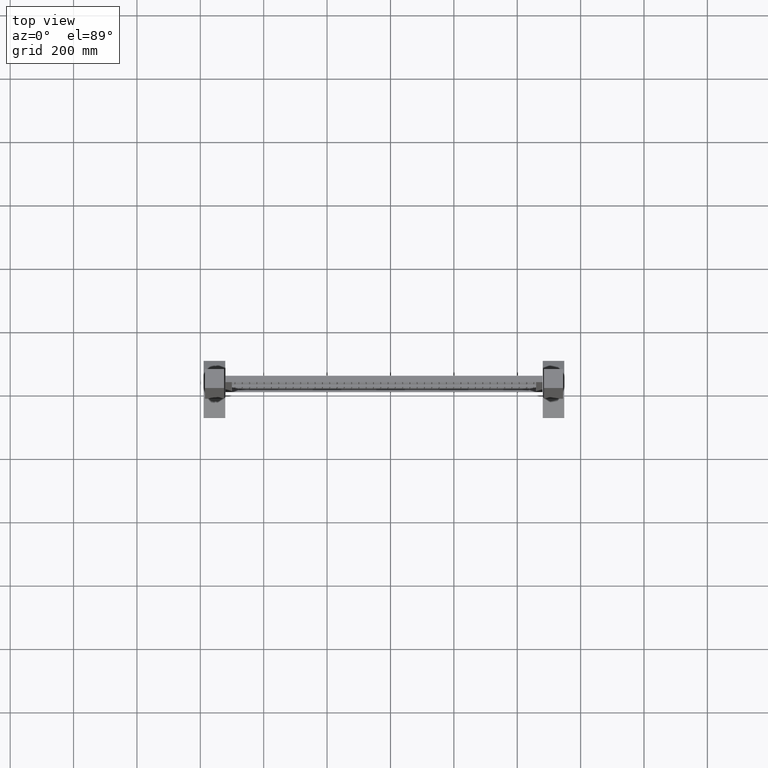
[diagram: clean part render]
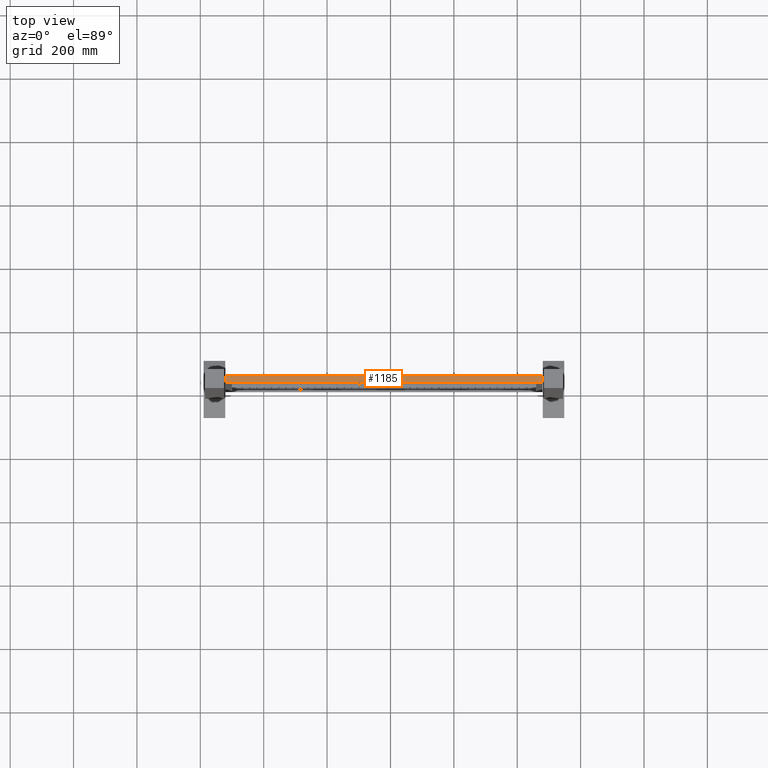
[diagram: same view with one face highlighted and labeled with its STEP entity id]
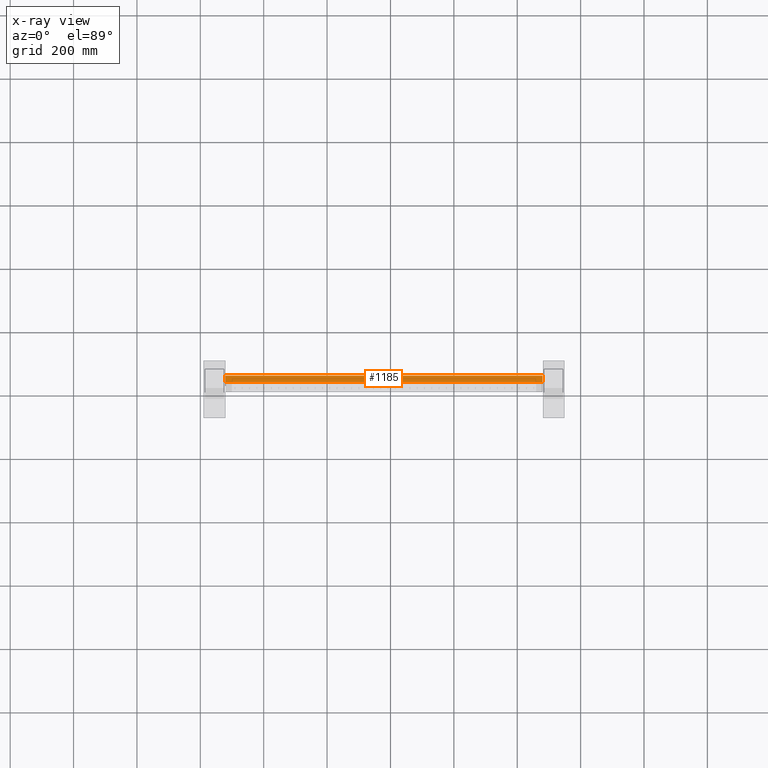
[diagram: x-ray of the same camera — body ghosted, the highlighted face saturated]
A machine part, top view. The second image highlights one B-rep face of the part: STEP entity #1185.
The next image is the same camera in x-ray: the body ghosted, the highlighted face saturated — about 0% of this face is hidden behind the body in this view.
In plain terms, the highlighted planar face has unit normal (0, 0, -1).
Its self-contained STEP definition (entity closure, byte-faithful):
#79=LINE('',#4198,#173);
#82=LINE('',#4204,#176);
#83=LINE('',#4206,#177);
#84=LINE('',#4208,#178);
#173=VECTOR('',#3461,1.);
#176=VECTOR('',#3466,1.);
#177=VECTOR('',#3467,1.);
#178=VECTOR('',#3468,1.);
#854=PLANE('',#2953);
#1006=FACE_OUTER_BOUND('',#1642,.T.);
#1185=ADVANCED_FACE('',(#1006),#854,.F.);
#1642=EDGE_LOOP('',(#1957,#1958,#1959,#1960));
#1957=ORIENTED_EDGE('',*,*,#2541,.T.);
#1958=ORIENTED_EDGE('',*,*,#2542,.F.);
#1959=ORIENTED_EDGE('',*,*,#2543,.F.);
#1960=ORIENTED_EDGE('',*,*,#2538,.T.);
#2344=VERTEX_POINT('',#4197);
#2345=VERTEX_POINT('',#4199);
#2347=VERTEX_POINT('',#4205);
#2348=VERTEX_POINT('',#4207);
#2538=EDGE_CURVE('',#2345,#2344,#79,.T.);
#2541=EDGE_CURVE('',#2344,#2347,#82,.T.);
#2542=EDGE_CURVE('',#2348,#2347,#83,.T.);
#2543=EDGE_CURVE('',#2345,#2348,#84,.T.);
#2953=AXIS2_PLACEMENT_3D('',#4209,#3469,#3470);
#3461=DIRECTION('',(0.,1.,0.));
#3466=DIRECTION('',(-1.,0.,0.));
#3467=DIRECTION('',(0.,1.,0.));
#3468=DIRECTION('',(-1.,0.,0.));
#3469=DIRECTION('',(0.,0.,-1.));
#3470=DIRECTION('',(-1.,0.,0.));
#4197=CARTESIAN_POINT('',(500.,10.,900.));
#4198=CARTESIAN_POINT('',(500.,-10.,900.));
#4199=CARTESIAN_POINT('',(500.,-10.,900.));
#4204=CARTESIAN_POINT('',(500.,10.,900.));
#4205=CARTESIAN_POINT('',(-500.,10.,900.));
#4206=CARTESIAN_POINT('',(-500.,-10.,900.));
#4207=CARTESIAN_POINT('',(-500.,-10.,900.));
#4208=CARTESIAN_POINT('',(500.,-10.,900.));
#4209=CARTESIAN_POINT('',(500.,-10.,900.));